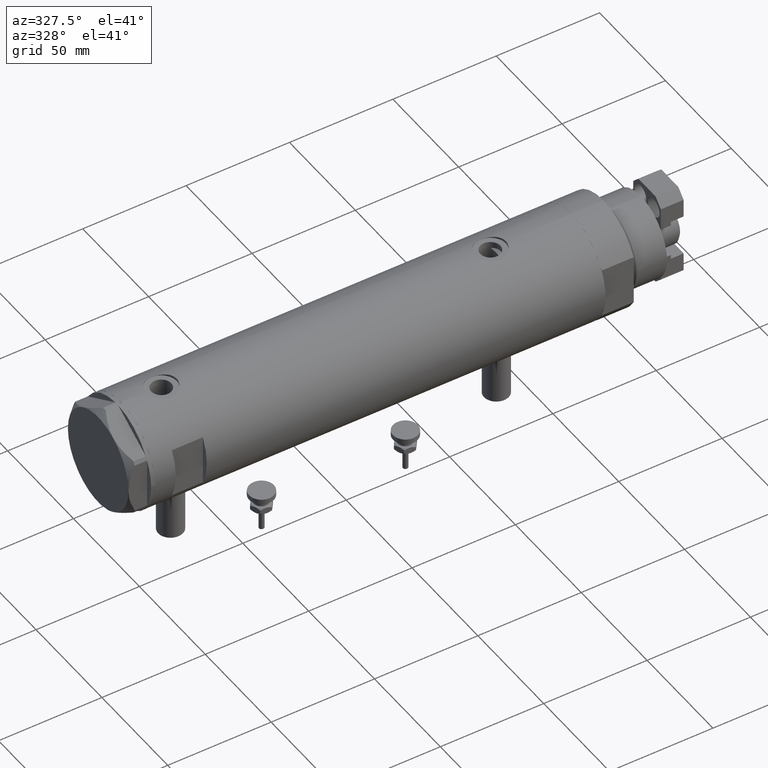
[diagram: clean part render]
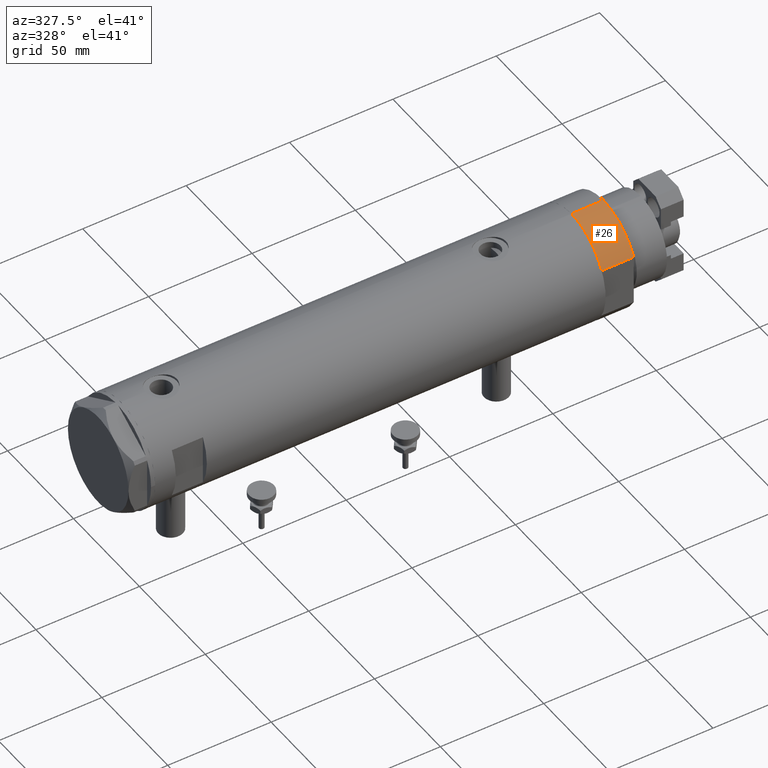
[diagram: same view with one face highlighted and labeled with its STEP entity id]
A machine part, auxiliary view. The second image highlights one B-rep face of the part: STEP entity #26.
In plain terms, the highlighted cylindrical surface (partial cylindrical patch) has radius 26 mm, axis along (-1, -0, 0).
Its self-contained STEP definition (entity closure, byte-faithful):
#26 = ADVANCED_FACE ( 'NONE', ( #4092 ), #6359, .T. ) ;
#45 = LINE ( 'NONE', #5440, #5130 ) ;
#334 = CARTESIAN_POINT ( 'NONE',  ( 0.000000000000000000, 0.000000000000000000, 15.50000000000000000 ) ) ;
#425 = EDGE_CURVE ( 'NONE', #4548, #4263, #6094, .T. ) ;
#893 = DIRECTION ( 'NONE',  ( -0.000000000000000000, -0.000000000000000000, -1.000000000000000000 ) ) ;
#996 = CARTESIAN_POINT ( 'NONE',  ( -26.00000000000000355, 0.000000000000000000, 0.000000000000000000 ) ) ;
#1089 = CARTESIAN_POINT ( 'NONE',  ( -12.12435565298215145, -22.99999999999999645, 0.000000000000000000 ) ) ;
#1467 = VERTEX_POINT ( 'NONE', #996 ) ;
#1667 = CARTESIAN_POINT ( 'NONE',  ( 0.000000000000000000, 0.000000000000000000, 0.000000000000000000 ) ) ;
#1866 = CARTESIAN_POINT ( 'NONE',  ( -26.00000000000000355, 0.000000000000000000, 15.50000000000000000 ) ) ;
#1933 = AXIS2_PLACEMENT_3D ( 'NONE', #1667, #2513, #5830 ) ;
#2267 = EDGE_CURVE ( 'NONE', #3977, #4263, #3322, .T. ) ;
#2513 = DIRECTION ( 'NONE',  ( 0.000000000000000000, 0.000000000000000000, 1.000000000000000000 ) ) ;
#2867 = EDGE_LOOP ( 'NONE', ( #3687, #4193, #5396, #4354 ) ) ;
#3248 = DIRECTION ( 'NONE',  ( -0.000000000000000000, -0.000000000000000000, 1.000000000000000000 ) ) ;
#3322 = LINE ( 'NONE', #1089, #5189 ) ;
#3582 = DIRECTION ( 'NONE',  ( 1.000000000000000000, 0.000000000000000000, 0.000000000000000000 ) ) ;
#3687 = ORIENTED_EDGE ( 'NONE', *, *, #425, .F. ) ;
#3977 = VERTEX_POINT ( 'NONE', #5066 ) ;
#3991 = CIRCLE ( 'NONE', #1933, 26.00000000000000355 ) ;
#4026 = DIRECTION ( 'NONE',  ( -1.000000000000000000, 0.000000000000000000, 0.000000000000000000 ) ) ;
#4092 = FACE_OUTER_BOUND ( 'NONE', #2867, .T. ) ;
#4134 = AXIS2_PLACEMENT_3D ( 'NONE', #334, #6275, #3582 ) ;
#4193 = ORIENTED_EDGE ( 'NONE', *, *, #4931, .T. ) ;
#4247 = AXIS2_PLACEMENT_3D ( 'NONE', #6289, #893, #4026 ) ;
#4263 = VERTEX_POINT ( 'NONE', #6596 ) ;
#4354 = ORIENTED_EDGE ( 'NONE', *, *, #2267, .T. ) ;
#4402 = DIRECTION ( 'NONE',  ( -0.000000000000000000, -0.000000000000000000, -1.000000000000000000 ) ) ;
#4548 = VERTEX_POINT ( 'NONE', #1866 ) ;
#4931 = EDGE_CURVE ( 'NONE', #4548, #1467, #45, .T. ) ;
#5048 = EDGE_CURVE ( 'NONE', #1467, #3977, #3991, .T. ) ;
#5066 = CARTESIAN_POINT ( 'NONE',  ( -12.12435565298215501, -22.99999999999999645, 0.000000000000000000 ) ) ;
#5130 = VECTOR ( 'NONE', #4402, 1000.000000000000000 ) ;
#5189 = VECTOR ( 'NONE', #3248, 1000.000000000000000 ) ;
#5396 = ORIENTED_EDGE ( 'NONE', *, *, #5048, .T. ) ;
#5440 = CARTESIAN_POINT ( 'NONE',  ( -26.00000000000000355, 0.000000000000000000, 15.50000000000000000 ) ) ;
#5830 = DIRECTION ( 'NONE',  ( 1.000000000000000000, 0.000000000000000000, 0.000000000000000000 ) ) ;
#6094 = CIRCLE ( 'NONE', #4134, 26.00000000000000355 ) ;
#6275 = DIRECTION ( 'NONE',  ( 0.000000000000000000, 0.000000000000000000, 1.000000000000000000 ) ) ;
#6289 = CARTESIAN_POINT ( 'NONE',  ( 0.000000000000000000, 0.000000000000000000, 15.50000000000000000 ) ) ;
#6359 = CYLINDRICAL_SURFACE ( 'NONE', #4247, 26.00000000000000355 ) ;
#6596 = CARTESIAN_POINT ( 'NONE',  ( -12.12435565298215323, -22.99999999999999645, 15.50000000000000000 ) ) ;